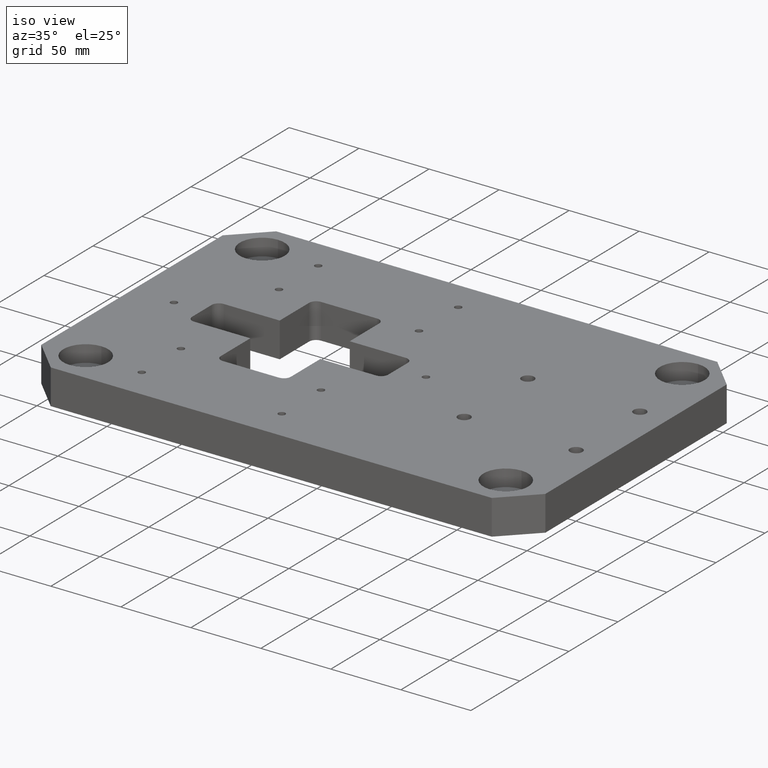
[diagram: clean part render]
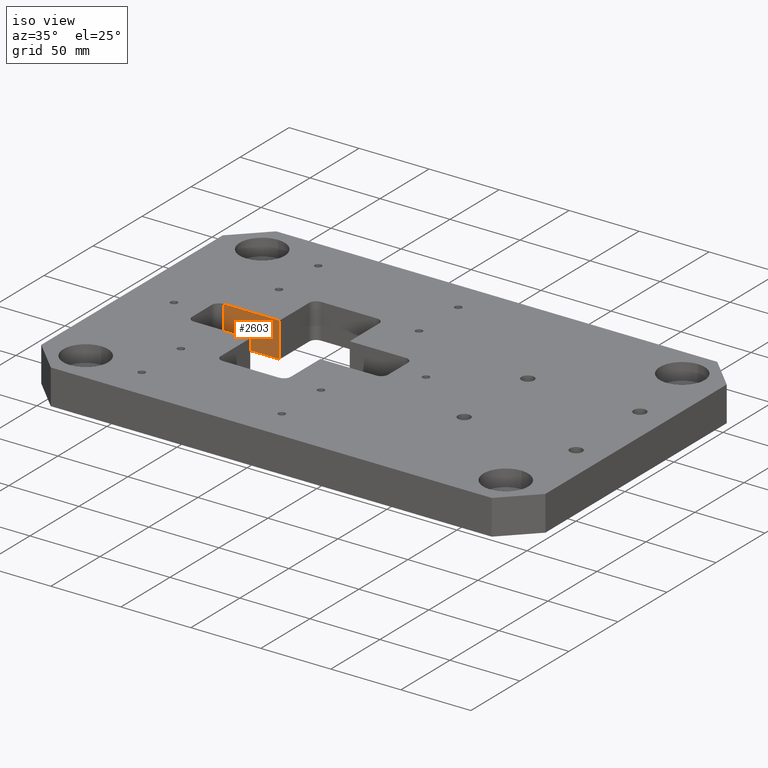
[diagram: same view with one face highlighted and labeled with its STEP entity id]
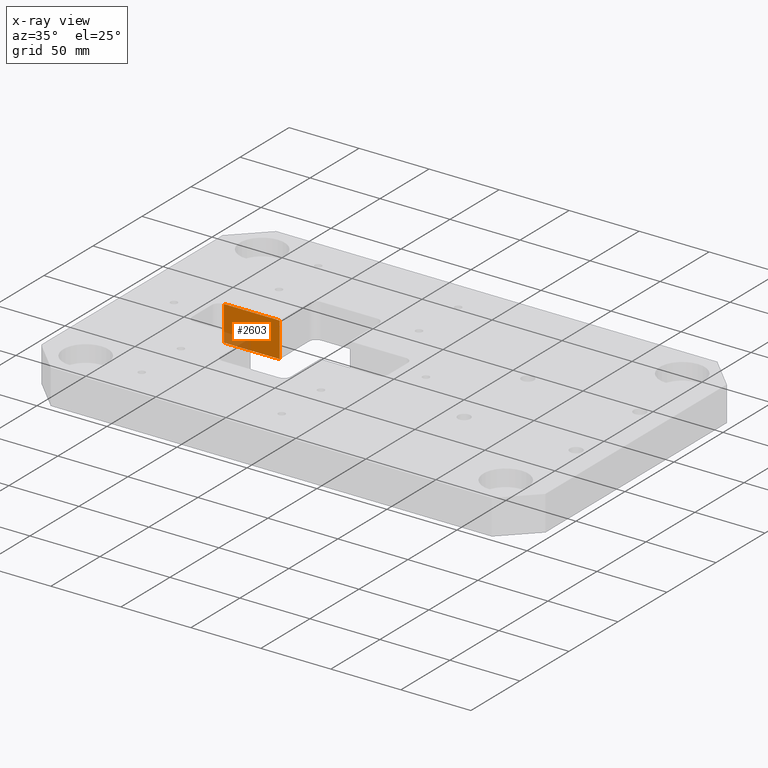
[diagram: x-ray of the same camera — body ghosted, the highlighted face saturated]
A machine part, iso view. The second image highlights one B-rep face of the part: STEP entity #2603.
The next image is the same camera in x-ray: the body ghosted, the highlighted face saturated — about 12% of this face is hidden behind the body in this view.
In plain terms, the highlighted planar face has unit normal (0, -1, 0).
Its self-contained STEP definition (entity closure, byte-faithful):
#1686=CARTESIAN_POINT('',(-84.999999999999829,15.0,12.500000000000000));
#1687=VERTEX_POINT('',#1686);
#1694=CARTESIAN_POINT('',(-84.999999999999829,14.999999999999993,-12.500000000000000));
#1695=VERTEX_POINT('',#1694);
#1696=CARTESIAN_POINT('',(-84.999999999999829,15.0,12.500000000000000));
#1697=DIRECTION('',(0.0,0.0,-1.0));
#1698=VECTOR('',#1697,25.0);
#1699=LINE('',#1696,#1698);
#1700=EDGE_CURVE('',#1687,#1695,#1699,.T.);
#1789=CARTESIAN_POINT('',(-124.999999999999830,15.0,12.500000000000000));
#1790=VERTEX_POINT('',#1789);
#1808=CARTESIAN_POINT('',(-124.999999999999830,14.999999999999993,-12.500000000000000));
#1809=VERTEX_POINT('',#1808);
#1817=CARTESIAN_POINT('',(-124.999999999999830,14.999999999999993,-12.500000000000000));
#1818=DIRECTION('',(0.0,0.0,1.0));
#1819=VECTOR('',#1818,25.0);
#1820=LINE('',#1817,#1819);
#1821=EDGE_CURVE('',#1809,#1790,#1820,.T.);
#2403=CARTESIAN_POINT('',(-84.999999999999829,15.0,12.500000000000000));
#2404=DIRECTION('',(-1.0,0.0,0.0));
#2405=VECTOR('',#2404,40.0);
#2406=LINE('',#2403,#2405);
#2407=EDGE_CURVE('',#1687,#1790,#2406,.T.);
#2587=CARTESIAN_POINT('',(-129.999999999999830,15.0,12.500000000000000));
#2588=DIRECTION('',(0.0,-1.0,0.0));
#2589=DIRECTION('',(0.0,0.0,-1.0));
#2590=AXIS2_PLACEMENT_3D('',#2587,#2588,#2589);
#2591=PLANE('',#2590);
#2592=ORIENTED_EDGE('',*,*,#1821,.F.);
#2593=CARTESIAN_POINT('',(-124.999999999999830,14.999999999999993,-12.500000000000000));
#2594=DIRECTION('',(1.0,0.0,0.0));
#2595=VECTOR('',#2594,40.0);
#2596=LINE('',#2593,#2595);
#2597=EDGE_CURVE('',#1809,#1695,#2596,.T.);
#2598=ORIENTED_EDGE('',*,*,#2597,.T.);
#2599=ORIENTED_EDGE('',*,*,#1700,.F.);
#2600=ORIENTED_EDGE('',*,*,#2407,.T.);
#2601=EDGE_LOOP('',(#2592,#2598,#2599,#2600));
#2602=FACE_OUTER_BOUND('',#2601,.T.);
#2603=ADVANCED_FACE('',(#2602),#2591,.T.);